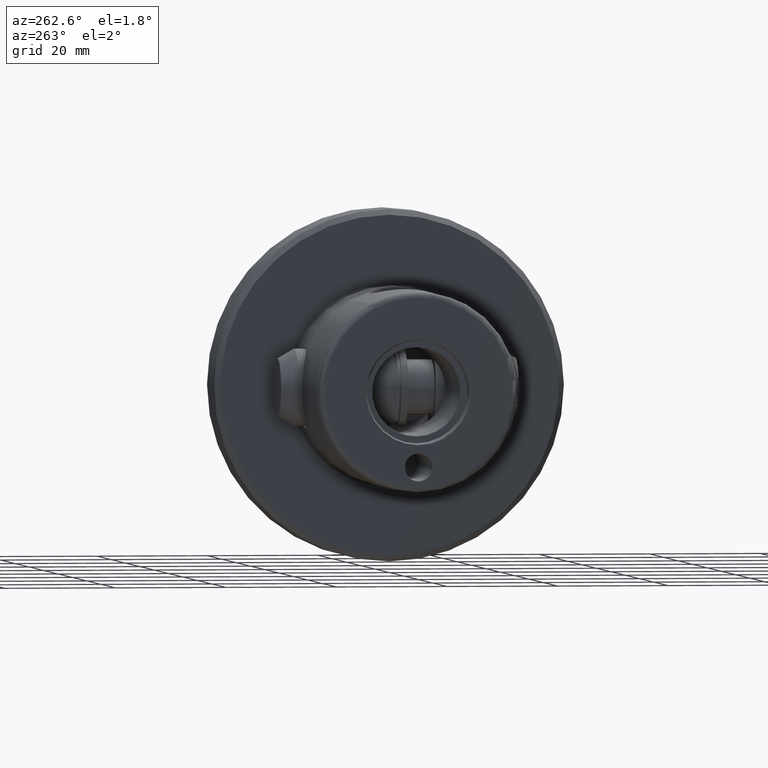
[diagram: clean part render]
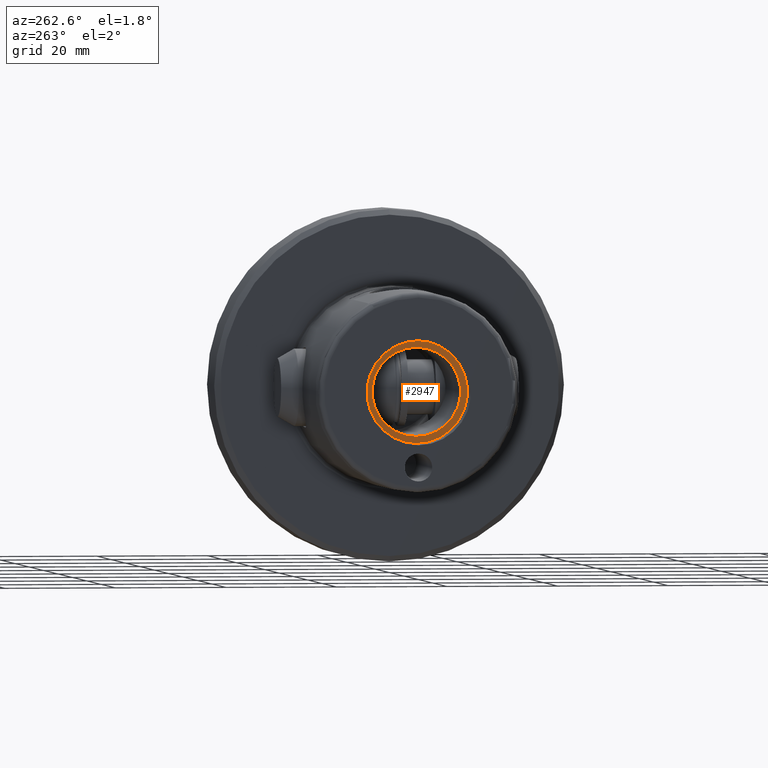
[diagram: same view with one face highlighted and labeled with its STEP entity id]
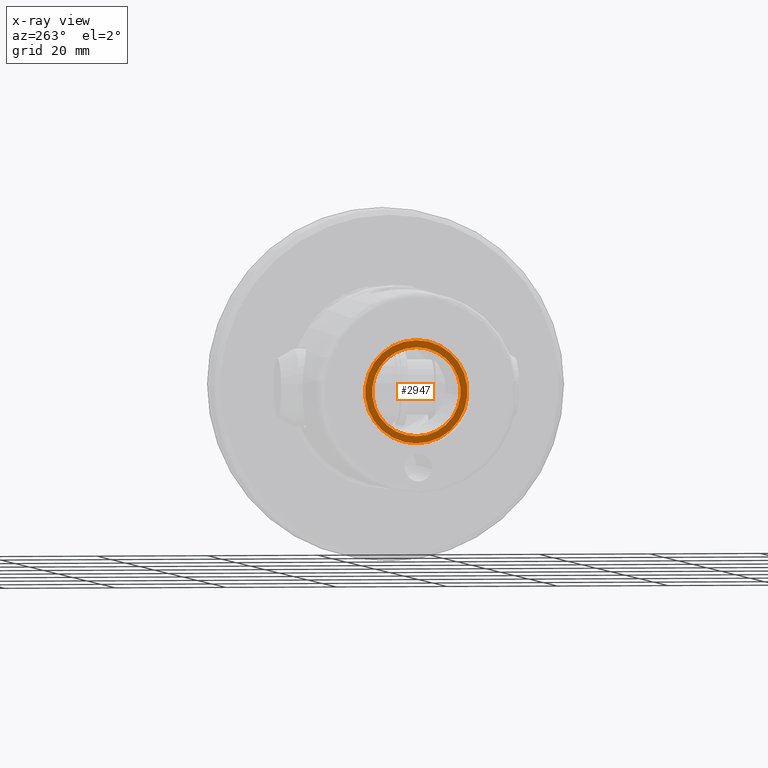
[diagram: x-ray of the same camera — body ghosted, the highlighted face saturated]
A machine part, auxiliary view. The second image highlights one B-rep face of the part: STEP entity #2947.
The next image is the same camera in x-ray: the body ghosted, the highlighted face saturated — about 0% of this face is hidden behind the body in this view.
In plain terms, the highlighted planar face has unit normal (1, 0, 0).
Its self-contained STEP definition (entity closure, byte-faithful):
#10 = DIRECTION ( 'NONE',  ( 1.000000000000000000, 0.0000000000000000000, 0.0000000000000000000 ) ) ;
#166 = FACE_BOUND ( 'NONE', #4114, .T. ) ;
#346 = ORIENTED_EDGE ( 'NONE', *, *, #1539, .F. ) ;
#460 = CARTESIAN_POINT ( 'NONE',  ( 3.000000000000001300, 9.250000000000000000, 0.0000000000000000000 ) ) ;
#811 = CIRCLE ( 'NONE', #3716, 8.000000000000000000 ) ;
#920 = ORIENTED_EDGE ( 'NONE', *, *, #2289, .T. ) ;
#1032 = EDGE_CURVE ( 'NONE', #2291, #2808, #2027, .T. ) ;
#1078 = CARTESIAN_POINT ( 'NONE',  ( 3.000000000000001300, 0.0000000000000000000, 8.000000000000000000 ) ) ;
#1084 = VERTEX_POINT ( 'NONE', #5054 ) ;
#1108 = CIRCLE ( 'NONE', #1152, 9.250000000000000000 ) ;
#1130 = ORIENTED_EDGE ( 'NONE', *, *, #1032, .F. ) ;
#1152 = AXIS2_PLACEMENT_3D ( 'NONE', #3770, #1358, #1768 ) ;
#1346 = EDGE_CURVE ( 'NONE', #1084, #3365, #5021, .T. ) ;
#1358 = DIRECTION ( 'NONE',  ( -1.000000000000000000, -0.0000000000000000000, -0.0000000000000000000 ) ) ;
#1366 = CARTESIAN_POINT ( 'NONE',  ( 3.000000000000001300, 0.0000000000000000000, 0.0000000000000000000 ) ) ;
#1461 = AXIS2_PLACEMENT_3D ( 'NONE', #1366, #1723, #3336 ) ;
#1539 = EDGE_CURVE ( 'NONE', #2808, #2291, #811, .T. ) ;
#1723 = DIRECTION ( 'NONE',  ( -1.000000000000000000, -0.0000000000000000000, -0.0000000000000000000 ) ) ;
#1767 = CARTESIAN_POINT ( 'NONE',  ( 3.000000000000001300, 1.132798289211301700E-015, -9.250000000000000000 ) ) ;
#1768 = DIRECTION ( 'NONE',  ( 0.0000000000000000000, 0.0000000000000000000, 1.000000000000000000 ) ) ;
#2027 = CIRCLE ( 'NONE', #4951, 8.000000000000000000 ) ;
#2065 = DIRECTION ( 'NONE',  ( 0.0000000000000000000, 0.0000000000000000000, -1.000000000000000000 ) ) ;
#2223 = AXIS2_PLACEMENT_3D ( 'NONE', #460, #10, #2065 ) ;
#2289 = EDGE_CURVE ( 'NONE', #3365, #1084, #1108, .T. ) ;
#2291 = VERTEX_POINT ( 'NONE', #4575 ) ;
#2313 = DIRECTION ( 'NONE',  ( -1.000000000000000000, -0.0000000000000000000, -0.0000000000000000000 ) ) ;
#2650 = EDGE_LOOP ( 'NONE', ( #3841, #920 ) ) ;
#2710 = DIRECTION ( 'NONE',  ( 0.0000000000000000000, 0.0000000000000000000, 1.000000000000000000 ) ) ;
#2808 = VERTEX_POINT ( 'NONE', #1078 ) ;
#2947 = ADVANCED_FACE ( 'NONE', ( #166, #3067 ), #4431, .F. ) ;
#3067 = FACE_OUTER_BOUND ( 'NONE', #2650, .T. ) ;
#3336 = DIRECTION ( 'NONE',  ( 0.0000000000000000000, 0.0000000000000000000, 1.000000000000000000 ) ) ;
#3365 = VERTEX_POINT ( 'NONE', #1767 ) ;
#3716 = AXIS2_PLACEMENT_3D ( 'NONE', #5093, #2313, #2710 ) ;
#3770 = CARTESIAN_POINT ( 'NONE',  ( 3.000000000000001300, 0.0000000000000000000, 0.0000000000000000000 ) ) ;
#3841 = ORIENTED_EDGE ( 'NONE', *, *, #1346, .T. ) ;
#4114 = EDGE_LOOP ( 'NONE', ( #346, #1130 ) ) ;
#4196 = DIRECTION ( 'NONE',  ( 0.0000000000000000000, 0.0000000000000000000, 1.000000000000000000 ) ) ;
#4431 = PLANE ( 'NONE',  #2223 ) ;
#4575 = CARTESIAN_POINT ( 'NONE',  ( 3.000000000000001300, 9.797174393178825700E-016, -8.000000000000000000 ) ) ;
#4951 = AXIS2_PLACEMENT_3D ( 'NONE', #4979, #5035, #4196 ) ;
#4979 = CARTESIAN_POINT ( 'NONE',  ( 3.000000000000001300, 0.0000000000000000000, 0.0000000000000000000 ) ) ;
#5021 = CIRCLE ( 'NONE', #1461, 9.250000000000000000 ) ;
#5035 = DIRECTION ( 'NONE',  ( -1.000000000000000000, -0.0000000000000000000, -0.0000000000000000000 ) ) ;
#5054 = CARTESIAN_POINT ( 'NONE',  ( 3.000000000000001300, 0.0000000000000000000, 9.250000000000000000 ) ) ;
#5093 = CARTESIAN_POINT ( 'NONE',  ( 3.000000000000001300, 0.0000000000000000000, 0.0000000000000000000 ) ) ;